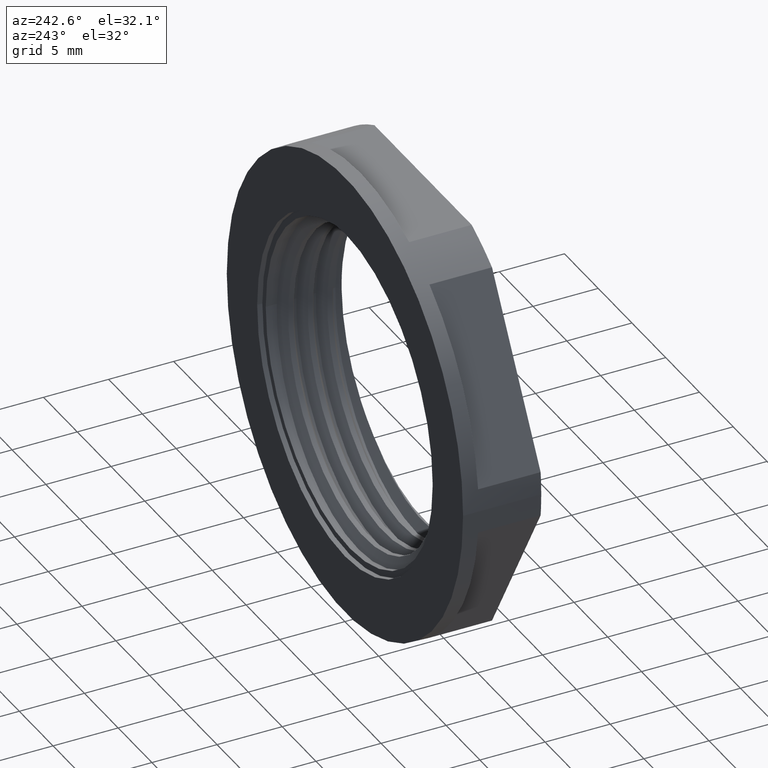
[diagram: clean part render]
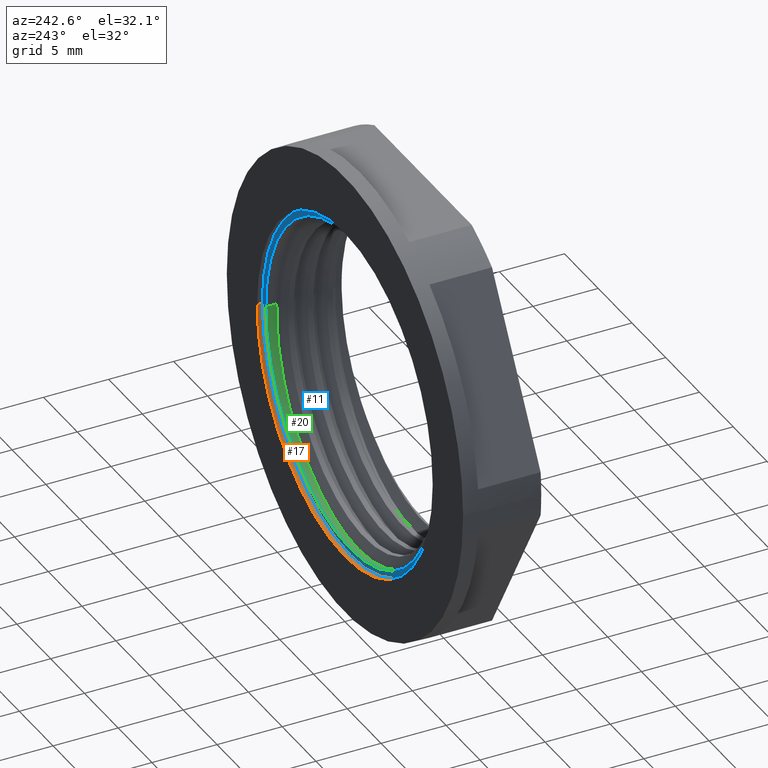
[diagram: same view with three faces highlighted in distinct colors, each labeled with its STEP entity id]
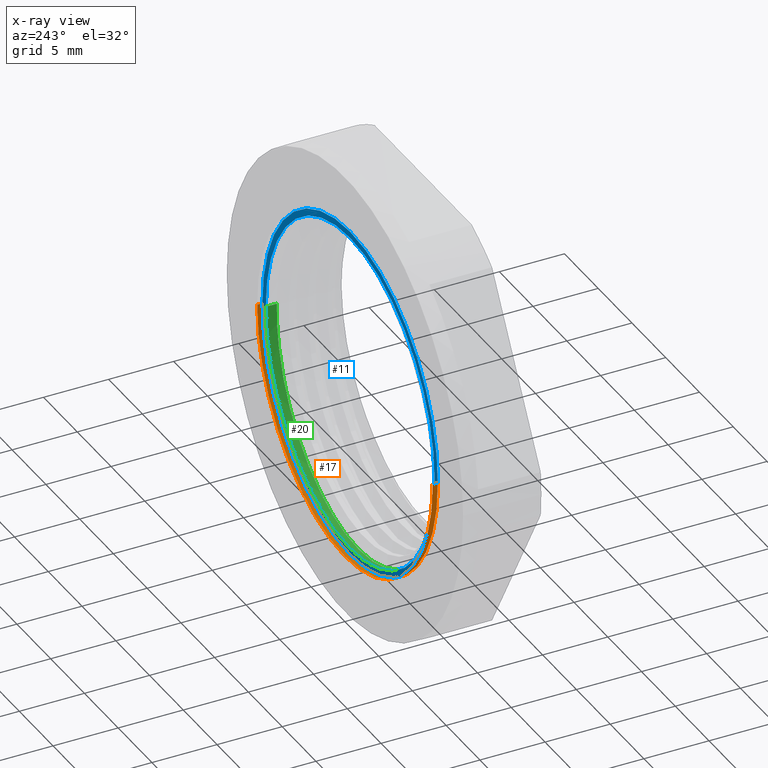
[diagram: x-ray of the same camera — body ghosted, the three highlighted faces saturated]
A machine part, auxiliary view with three faces highlighted in distinct colors.
The next image is the same camera in x-ray (body ghosted, the three faces saturated) — at least one of them is partly hidden behind the body in this view.
Their STEP definitions:

[orange] entity #17 — the highlighted cylindrical surface (partial cylindrical patch) has radius 13 mm, axis along (-0, 1, 0).
#17 = ADVANCED_FACE ( 'NONE', ( #1309 ), #1310, .F. ) ;
#37 = EDGE_CURVE ( 'NONE', #986, #998, #713, .T. ) ;
#59 = EDGE_CURVE ( 'NONE', #1005, #986, #1717, .T. ) ;
#65 = EDGE_CURVE ( 'NONE', #985, #998, #1761, .T. ) ;
#78 = EDGE_CURVE ( 'NONE', #1005, #985, #189, .T. ) ;
#168 = DIRECTION ( 'NONE',  ( -1.224646799147352000E-016, 1.000000000000000000, 0.0000000000000000000 ) ) ;
#181 = CARTESIAN_POINT ( 'NONE',  ( 13.00000000000000200, -10.39999999999999900, 1.592040838891559100E-015 ) ) ;
#189 = LINE ( 'NONE', #181, #1718 ) ;
#433 = CARTESIAN_POINT ( 'NONE',  ( -12.99999999999999800, -10.40000000000000200, 0.0000000000000000000 ) ) ;
#444 = CARTESIAN_POINT ( 'NONE',  ( -12.99999999999999800, -10.00000000000000200, 0.0000000000000000000 ) ) ;
#447 = CARTESIAN_POINT ( 'NONE',  ( 13.00000000000000200, -9.999999999999998200, 1.592040838891559100E-015 ) ) ;
#478 = CARTESIAN_POINT ( 'NONE',  ( 13.00000000000000200, -10.39999999999999900, 1.592040838891559100E-015 ) ) ;
#713 = LINE ( 'NONE', #735, #1697 ) ;
#735 = CARTESIAN_POINT ( 'NONE',  ( -12.99999999999999800, -10.40000000000000200, 0.0000000000000000000 ) ) ;
#749 = DIRECTION ( 'NONE',  ( -1.224646799147352000E-016, 1.000000000000000000, 0.0000000000000000000 ) ) ;
#825 = CARTESIAN_POINT ( 'NONE',  ( 1.273632671113246100E-015, -10.40000000000000000, 0.0000000000000000000 ) ) ;
#859 = DIRECTION ( 'NONE',  ( -1.224646799147352000E-016, 1.000000000000000000, 0.0000000000000000000 ) ) ;
#863 = DIRECTION ( 'NONE',  ( -1.000000000000000000, -1.334402673828313100E-016, 0.0000000000000000000 ) ) ;
#882 = DIRECTION ( 'NONE',  ( -1.000000000000000000, -1.334402673828313100E-016, 0.0000000000000000000 ) ) ;
#889 = DIRECTION ( 'NONE',  ( -1.224646799147352000E-016, 1.000000000000000000, 0.0000000000000000000 ) ) ;
#910 = CARTESIAN_POINT ( 'NONE',  ( 1.224646799147351900E-015, -10.00000000000000000, 0.0000000000000000000 ) ) ;
#985 = VERTEX_POINT ( 'NONE', #447 ) ;
#986 = VERTEX_POINT ( 'NONE', #433 ) ;
#998 = VERTEX_POINT ( 'NONE', #444 ) ;
#1005 = VERTEX_POINT ( 'NONE', #478 ) ;
#1018 = ORIENTED_EDGE ( 'NONE', *, *, #59, .F. ) ;
#1031 = ORIENTED_EDGE ( 'NONE', *, *, #65, .T. ) ;
#1065 = ORIENTED_EDGE ( 'NONE', *, *, #37, .F. ) ;
#1067 = ORIENTED_EDGE ( 'NONE', *, *, #78, .T. ) ;
#1229 = EDGE_LOOP ( 'NONE', ( #1018, #1067, #1031, #1065 ) ) ;
#1269 = DIRECTION ( 'NONE',  ( -1.224646799147352000E-016, 1.000000000000000000, 0.0000000000000000000 ) ) ;
#1299 = CARTESIAN_POINT ( 'NONE',  ( 1.273632671113246100E-015, -10.40000000000000000, 0.0000000000000000000 ) ) ;
#1301 = DIRECTION ( 'NONE',  ( -1.000000000000000000, -1.334402673828313100E-016, 0.0000000000000000000 ) ) ;
#1309 = FACE_OUTER_BOUND ( 'NONE', #1229, .T. ) ;
#1310 = CYLINDRICAL_SURFACE ( 'NONE', #1715, 13.00000000000000000 ) ;
#1697 = VECTOR ( 'NONE', #749, 1000.000000000000000 ) ;
#1715 = AXIS2_PLACEMENT_3D ( 'NONE', #1299, #1269, #1301 ) ;
#1717 = CIRCLE ( 'NONE', #1755, 13.00000000000000000 ) ;
#1718 = VECTOR ( 'NONE', #168, 1000.000000000000000 ) ;
#1740 = AXIS2_PLACEMENT_3D ( 'NONE', #910, #889, #882 ) ;
#1755 = AXIS2_PLACEMENT_3D ( 'NONE', #825, #859, #863 ) ;
#1761 = CIRCLE ( 'NONE', #1740, 13.00000000000000000 ) ;

[blue] entity #11 — the highlighted planar face has unit normal (-0, 1, 0).
#11 = ADVANCED_FACE ( 'NONE', ( #1298, #1302 ), #1282, .T. ) ;
#42 = EDGE_CURVE ( 'NONE', #1023, #1056, #1721, .T. ) ;
#59 = EDGE_CURVE ( 'NONE', #1005, #986, #1717, .T. ) ;
#93 = EDGE_CURVE ( 'NONE', #1056, #1023, #1768, .T. ) ;
#102 = EDGE_CURVE ( 'NONE', #986, #1005, #1779, .T. ) ;
#203 = DIRECTION ( 'NONE',  ( 1.224646799147352000E-016, -1.000000000000000000, -0.0000000000000000000 ) ) ;
#204 = DIRECTION ( 'NONE',  ( -1.000000000000000000, -1.387778780781445700E-016, 0.0000000000000000000 ) ) ;
#235 = CARTESIAN_POINT ( 'NONE',  ( 1.273632671113246100E-015, -10.40000000000000000, 0.0000000000000000000 ) ) ;
#246 = DIRECTION ( 'NONE',  ( -1.224646799147352000E-016, 1.000000000000000000, 0.0000000000000000000 ) ) ;
#249 = CARTESIAN_POINT ( 'NONE',  ( 1.273632671113246100E-015, -10.40000000000000000, 0.0000000000000000000 ) ) ;
#270 = DIRECTION ( 'NONE',  ( -1.000000000000000000, -1.334402673828313100E-016, 0.0000000000000000000 ) ) ;
#433 = CARTESIAN_POINT ( 'NONE',  ( -12.99999999999999800, -10.40000000000000200, 0.0000000000000000000 ) ) ;
#454 = CARTESIAN_POINT ( 'NONE',  ( 12.50000000000000200, -10.39999999999999900, 1.530808498934191500E-015 ) ) ;
#478 = CARTESIAN_POINT ( 'NONE',  ( 13.00000000000000200, -10.39999999999999900, 1.592040838891559100E-015 ) ) ;
#487 = CARTESIAN_POINT ( 'NONE',  ( -12.49999999999999800, -10.40000000000000200, 0.0000000000000000000 ) ) ;
#745 = DIRECTION ( 'NONE',  ( 1.224646799147352000E-016, -1.000000000000000000, -0.0000000000000000000 ) ) ;
#759 = DIRECTION ( 'NONE',  ( -1.000000000000000000, -1.387778780781445700E-016, 0.0000000000000000000 ) ) ;
#768 = CARTESIAN_POINT ( 'NONE',  ( 1.273632671113246100E-015, -10.40000000000000000, 0.0000000000000000000 ) ) ;
#825 = CARTESIAN_POINT ( 'NONE',  ( 1.273632671113246100E-015, -10.40000000000000000, 0.0000000000000000000 ) ) ;
#859 = DIRECTION ( 'NONE',  ( -1.224646799147352000E-016, 1.000000000000000000, 0.0000000000000000000 ) ) ;
#863 = DIRECTION ( 'NONE',  ( -1.000000000000000000, -1.334402673828313100E-016, 0.0000000000000000000 ) ) ;
#986 = VERTEX_POINT ( 'NONE', #433 ) ;
#1005 = VERTEX_POINT ( 'NONE', #478 ) ;
#1023 = VERTEX_POINT ( 'NONE', #487 ) ;
#1056 = VERTEX_POINT ( 'NONE', #454 ) ;
#1147 = ORIENTED_EDGE ( 'NONE', *, *, #93, .T. ) ;
#1152 = ORIENTED_EDGE ( 'NONE', *, *, #42, .T. ) ;
#1175 = ORIENTED_EDGE ( 'NONE', *, *, #102, .T. ) ;
#1184 = ORIENTED_EDGE ( 'NONE', *, *, #59, .T. ) ;
#1252 = EDGE_LOOP ( 'NONE', ( #1175, #1184 ) ) ;
#1257 = EDGE_LOOP ( 'NONE', ( #1152, #1147 ) ) ;
#1262 = CARTESIAN_POINT ( 'NONE',  ( 1.273632671113246100E-015, -10.40000000000000000, 0.0000000000000000000 ) ) ;
#1266 = DIRECTION ( 'NONE',  ( -1.224646799147352000E-016, 1.000000000000000000, 0.0000000000000000000 ) ) ;
#1282 = PLANE ( 'NONE',  #1705 ) ;
#1298 = FACE_OUTER_BOUND ( 'NONE', #1252, .T. ) ;
#1302 = FACE_BOUND ( 'NONE', #1257, .T. ) ;
#1303 = DIRECTION ( 'NONE',  ( -1.000000000000000000, -1.224646799147352000E-016, 0.0000000000000000000 ) ) ;
#1705 = AXIS2_PLACEMENT_3D ( 'NONE', #1262, #1266, #1303 ) ;
#1717 = CIRCLE ( 'NONE', #1755, 13.00000000000000000 ) ;
#1721 = CIRCLE ( 'NONE', #1757, 12.50000000000000000 ) ;
#1755 = AXIS2_PLACEMENT_3D ( 'NONE', #825, #859, #863 ) ;
#1757 = AXIS2_PLACEMENT_3D ( 'NONE', #768, #745, #759 ) ;
#1768 = CIRCLE ( 'NONE', #1785, 12.50000000000000000 ) ;
#1779 = CIRCLE ( 'NONE', #1792, 13.00000000000000000 ) ;
#1785 = AXIS2_PLACEMENT_3D ( 'NONE', #235, #203, #204 ) ;
#1792 = AXIS2_PLACEMENT_3D ( 'NONE', #249, #246, #270 ) ;

[green] entity #20 — the highlighted cylindrical surface (partial cylindrical patch) has radius 12.5 mm, axis along (-0, 1, 0).
#20 = ADVANCED_FACE ( 'NONE', ( #1329 ), #1322, .F. ) ;
#42 = EDGE_CURVE ( 'NONE', #1023, #1056, #1721, .T. ) ;
#84 = EDGE_CURVE ( 'NONE', #1016, #1077, #1832, .T. ) ;
#87 = EDGE_CURVE ( 'NONE', #1016, #1023, #179, .T. ) ;
#90 = EDGE_CURVE ( 'NONE', #1077, #1056, #229, .T. ) ;
#154 = CARTESIAN_POINT ( 'NONE',  ( -5.177669529663685200, -10.78124999999999800, -12.50000000000001400 ) ) ;
#156 = CARTESIAN_POINT ( 'NONE',  ( 8.838834764831851500, -11.06250000000000000, -8.838834764831851500 ) ) ;
#160 = CARTESIAN_POINT ( 'NONE',  ( -12.50000000000000000, -10.50000000000000000, 0.0000000000000000000 ) ) ;
#161 = CARTESIAN_POINT ( 'NONE',  ( -8.838834764831840800, -10.68750000000000000, -8.838834764831840800 ) ) ;
#164 = CARTESIAN_POINT ( 'NONE',  ( 12.49999999999999800, -11.15624999999999300, -5.177669529663708300 ) ) ;
#176 = CARTESIAN_POINT ( 'NONE',  ( -12.49999999999999300, -10.59375000000000700, -5.177669529663685200 ) ) ;
#177 = CARTESIAN_POINT ( 'NONE',  ( 5.177669529663685200, -10.96875000000000400, -12.50000000000001400 ) ) ;
#178 = CARTESIAN_POINT ( 'NONE',  ( 12.50000000000000000, -11.25000000000000000, -1.530808498934190100E-015 ) ) ;
#179 = LINE ( 'NONE', #245, #1734 ) ;
#198 = CARTESIAN_POINT ( 'NONE',  ( 5.663991446056510500E-016, -10.87500000000000000, -12.50000000000000000 ) ) ;
#201 = DIRECTION ( 'NONE',  ( -1.224646799147352000E-016, 1.000000000000000000, 0.0000000000000000000 ) ) ;
#215 = CARTESIAN_POINT ( 'NONE',  ( 12.50000000000000000, 1.530808498934190100E-015, 1.530808498934191500E-015 ) ) ;
#229 = LINE ( 'NONE', #215, #1743 ) ;
#232 = DIRECTION ( 'NONE',  ( -1.224646799147352000E-016, 1.000000000000000000, 0.0000000000000000000 ) ) ;
#245 = CARTESIAN_POINT ( 'NONE',  ( -12.50000000000000000, -1.530808498934190100E-015, 0.0000000000000000000 ) ) ;
#454 = CARTESIAN_POINT ( 'NONE',  ( 12.50000000000000200, -10.39999999999999900, 1.530808498934191500E-015 ) ) ;
#471 = CARTESIAN_POINT ( 'NONE',  ( -12.50000000000000000, -10.50000000000000000, 0.0000000000000000000 ) ) ;
#479 = CARTESIAN_POINT ( 'NONE',  ( 12.50000000000000000, -11.25000000000000000, -1.530808498934190100E-015 ) ) ;
#487 = CARTESIAN_POINT ( 'NONE',  ( -12.49999999999999800, -10.40000000000000200, 0.0000000000000000000 ) ) ;
#745 = DIRECTION ( 'NONE',  ( 1.224646799147352000E-016, -1.000000000000000000, -0.0000000000000000000 ) ) ;
#759 = DIRECTION ( 'NONE',  ( -1.000000000000000000, -1.387778780781445700E-016, 0.0000000000000000000 ) ) ;
#768 = CARTESIAN_POINT ( 'NONE',  ( 1.273632671113246100E-015, -10.40000000000000000, 0.0000000000000000000 ) ) ;
#1016 = VERTEX_POINT ( 'NONE', #471 ) ;
#1023 = VERTEX_POINT ( 'NONE', #487 ) ;
#1033 = ORIENTED_EDGE ( 'NONE', *, *, #87, .F. ) ;
#1056 = VERTEX_POINT ( 'NONE', #454 ) ;
#1062 = ORIENTED_EDGE ( 'NONE', *, *, #84, .T. ) ;
#1074 = ORIENTED_EDGE ( 'NONE', *, *, #90, .T. ) ;
#1075 = ORIENTED_EDGE ( 'NONE', *, *, #42, .F. ) ;
#1077 = VERTEX_POINT ( 'NONE', #479 ) ;
#1237 = EDGE_LOOP ( 'NONE', ( #1062, #1074, #1075, #1033 ) ) ;
#1316 = CARTESIAN_POINT ( 'NONE',  ( 0.0000000000000000000, 0.0000000000000000000, 0.0000000000000000000 ) ) ;
#1319 = DIRECTION ( 'NONE',  ( -1.000000000000000000, -1.224646799147352200E-016, 0.0000000000000000000 ) ) ;
#1322 = CYLINDRICAL_SURFACE ( 'NONE', #1695, 12.50000000000000000 ) ;
#1329 = FACE_OUTER_BOUND ( 'NONE', #1237, .T. ) ;
#1369 = DIRECTION ( 'NONE',  ( -1.224646799147352000E-016, 1.000000000000000000, 0.0000000000000000000 ) ) ;
#1695 = AXIS2_PLACEMENT_3D ( 'NONE', #1316, #1369, #1319 ) ;
#1721 = CIRCLE ( 'NONE', #1757, 12.50000000000000000 ) ;
#1734 = VECTOR ( 'NONE', #232, 1000.000000000000000 ) ;
#1743 = VECTOR ( 'NONE', #201, 1000.000000000000000 ) ;
#1757 = AXIS2_PLACEMENT_3D ( 'NONE', #768, #745, #759 ) ;
#1832 =( BOUNDED_CURVE ( )  B_SPLINE_CURVE ( 2, ( #160, #176, #161, #154, #198, #177, #156, #164, #178 ),
 .UNSPECIFIED., .F., .T. ) 
 B_SPLINE_CURVE_WITH_KNOTS ( ( 3, 2, 2, 2, 3 ),
 ( 0.0000000000000000000, 0.02499999999999998100, 0.04999999999999996100, 0.07499999999999992800, 0.09999999999999992200 ),
 .UNSPECIFIED. ) 
 CURVE ( )  GEOMETRIC_REPRESENTATION_ITEM ( )  RATIONAL_B_SPLINE_CURVE ( ( 1.000000000000000000, 0.9238795325112869600, 1.000000000000000000, 0.9238795325112869600, 1.000000000000000000, 0.9238795325112869600, 1.000000000000000000, 0.9238795325112871800, 0.9999999999999997800 ) ) 
 REPRESENTATION_ITEM ( '' )  );